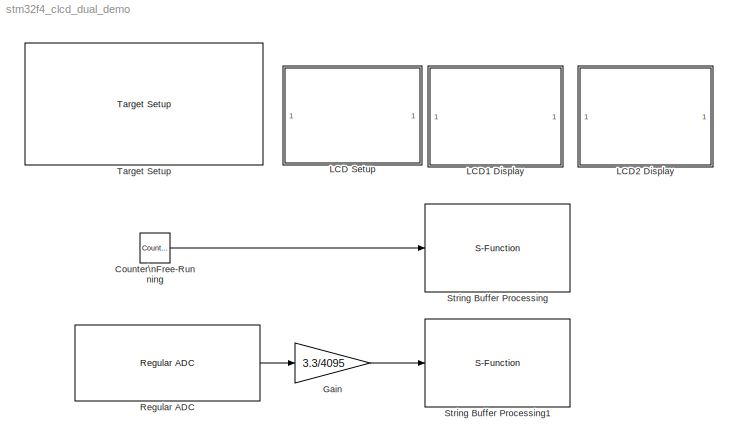
MODEL stm32f4_clcd_dual_demo
KIND model
CONFIG PreLoadFcn = waijung.modelPreload; % Required for working with Waijung Blockset. Do not remove.
BLOCK [Reference] Counter\nFree-Running  REF=simulink/Sources/Counter\nFree-Running
  FunctionWithSeparateData = off
  NumBits = 16
  Ports = [0, 1]
  RTWMemSecDataConstants = Inherit from model
  RTWMemSecDataInternal = Inherit from model
  RTWMemSecDataParameters = Inherit from model
  RTWMemSecFuncExecute = Inherit from model
  RTWMemSecFuncInitTerm = Inherit from model
  ShowPortLabels = FromPortIcon
  SourceBlock = simulink/Sources/Counter\nFree-Running
  SourceType = Counter Free-Running
  SystemSampleTime = -1
  tsamp = 0.01
BLOCK [Gain] Gain
  Gain = 3.3/4095
  OutDataType = fixdt(1, 16)
  OutDataTypeMode = single
  OutDataTypeStr = single
  OutScaling = 2^0
  ParamDataTypeStr = single
  ParameterDataType = fixdt(1, 16)
  ParameterDataTypeMode = single
  ParameterScaling = 2^0
  SaturateOnIntegerOverflow = off
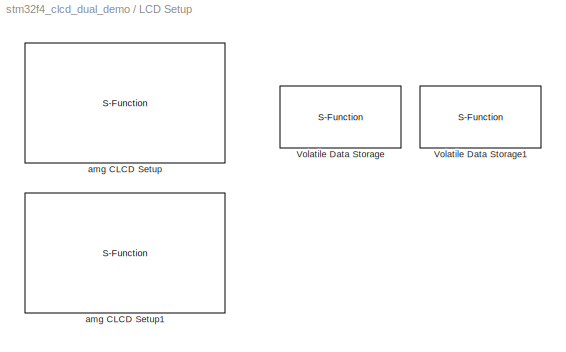
BLOCK [SubSystem] LCD Setup
  FunctionWithSeparateData = off
  MaskHideContents = off
  MinAlgLoopOccurrences = off
  Opaque = off
  Ports = []
  PropExecContextOutsideSubsystem = off
  RTWSystemCode = Auto
  RequestExecContextInheritance = off
BLOCK [S-Function] LCD Setup/Volatile Data Storage
  EnableBusSupport = off
  FunctionName = waijung_vdata_storage
  MaskCallbackString = waijung_vdata_storage_callback('storagetype');|waijung_vdata_storage_callback('storagename');|waijung_vdata_storage_callback('initval');|waijung_vdata_storage_callback('varname');||waijung_vdata_storage_callback('initvalstring');|waijung_vdata_storage_callback('webintegration');|waijung_vdata_storage_callback('weboutputformat');|||waijung_vdata_storage_callback('sampletime');|waijung_vdata_storage...<+71ch>  <repeated x4 — deduplicated; at blocks: Volatile Data Storage, Volatile Data Storage1>
  MaskDescription = This block implements a volatile Data Storage.\n\nWeb CGI varset/varget integratiopn:\nEnable - In webserver application, allow remote access via http.\nDisable - Variable is use in local only.  <repeated x4 — deduplicated; at blocks: Volatile Data Storage, Volatile Data Storage1>
  MaskDisplay = text(0.5, 0.5, 'Name: Line1\\nType: string','ver','middle','hor','center')
  MaskEnableString = on,on,on,off,on,on,on,on,off,on,on,off,off,on
  MaskHelp = web(fullfile(waijungdocroot,'Volatile_Data_Storage.htm'))
  MaskIconFrame = on
  MaskIconOpaque = on
  MaskIconRotate = none
  MaskIconUnits = normalized
  MaskInitialization = waijung_vdata_storage_callback('init');
  MaskPortRotate = default
  MaskPromptString = Storage Type|Storage Name (must be a valid variable name)|Initial value (Apply at Power on Reset only)|Variable name|Size (bytes)|Initial value (Apply at Power on Reset only)|Web CGI varget/varset integration|Web CGI varget output format|Web CGI varset callback|Last selected Storage Type|Sample time (sec)|Compiled sample time (sec) in string|BlockID|Type string  <repeated x4 — deduplicated; at blocks: Volatile Data Storage, Volatile Data Storage1>
  MaskSelfModifiable = on
  MaskStyleString = popup(double|single|uint32|int32|uint16|int16|uint8|int8|string),edit,edit,edit,edit,edit,popup(Disable|ReadOnly|Write/ Read|ReadOnly with KeyValuePair|Write/ Read with KeyValuePair),edit,edit,popup(double|single|uint32|int32|uint16|int16|uint8|int8|string),edit,edit,edit,edit  <repeated x4 — deduplicated; at blocks: Volatile Data Storage, Volatile Data Storage1>
  MaskTabNameString = ,,,,,,,,,,,,,
  MaskToolTipString = on,on,on,on,on,on,on,on,on,on,on,on,on,on
  MaskTunableValueString = off,off,off,off,off,off,off,off,off,off,off,off,off,off
  MaskType = waijung_vdata_storage
  MaskValueString = string|Line1|0|LCDSetupVolatileDataStorage_Line1|64|''|Disable|'%s'|(void*)0|string|-1|0.01|LCDSetupVolatileDataStorage|char
  MaskVarAliasString = ,,,,,,,,,,,,,
  MaskVariables = storagetype=&1;storagename=&2;initval=@3;varname=&4;buffersize=@5;initvalstring=@6;webintegration=&7;weboutputformat=&8;webcgicallback=&9;laststoragetype=&10;sampletime=@11;sampletimestr=&12;blockid=&13;storagetypestr=&14;  <repeated x4 — deduplicated; at blocks: Volatile Data Storage, Volatile Data Storage1>
  MaskVisibilityString = on,on,off,off,on,on,on,off,off,off,on,off,off,off
  Parameters = storagetype,storagename,initval,varname,buffersize,initvalstring,sampletime,sampletimestr,blockid,storagetypestr
  Ports = []
BLOCK [S-Function] LCD Setup/Volatile Data Storage1
  EnableBusSupport = off
  FunctionName = waijung_vdata_storage
  MaskDisplay = text(0.5, 0.5, 'Name: Line2\\nType: string','ver','middle','hor','center')
  MaskEnableString = on,on,on,off,on,on,on,on,off,on,on,off,off,on
  MaskHelp = web(fullfile(waijungdocroot,'Volatile_Data_Storage.htm'))
  MaskIconFrame = on
  MaskIconOpaque = on
  MaskIconRotate = none
  MaskIconUnits = normalized
  MaskInitialization = waijung_vdata_storage_callback('init');
  MaskPortRotate = default
  MaskSelfModifiable = on
  MaskTabNameString = ,,,,,,,,,,,,,
  MaskToolTipString = on,on,on,on,on,on,on,on,on,on,on,on,on,on
  MaskTunableValueString = off,off,off,off,off,off,off,off,off,off,off,off,off,off
  MaskType = waijung_vdata_storage
  MaskValueString = string|Line2|0|LCDSetupVolatileDataStorage1_Line2|64|''|Disable|'%s'|(void*)0|string|-1|0.01|LCDSetupVolatileDataStorage1|char
  MaskVarAliasString = ,,,,,,,,,,,,,
  MaskVisibilityString = on,on,off,off,on,on,on,off,off,off,on,off,off,off
  Parameters = storagetype,storagename,initval,varname,buffersize,initvalstring,sampletime,sampletimestr,blockid,storagetypestr
  Ports = []
BLOCK [S-Function] LCD Setup/amg CLCD Setup
  EnableBusSupport = off
  FunctionName = amg_clcd
  MaskCallbackString = amg_clcd_callback('configuration');||||||||||||||||amg_clcd_callback('usestringbuffer');||amg_clcd_callback('varname');|||amg_clcd_callback('confstr');|amg_clcd_callback('sampletime');|amg_clcd_callback('sampletimestr');|amg_clcd_callback('blockid');  <repeated x6 — deduplicated; at blocks: amg CLCD Setup, amg CLCD Setup1, amg CLCD Write, amg CLCD Write1>
  MaskDisplay = text(0.5, 0.5, 'Module: CLCD1 (Setup)\\nInterface: 4-bits\\nCntrl: E7/E8/E9\\nD[7:4]: E12/E13/E14/E15\\nTs (sec): 0.01','ver','middle','hor','center');
  MaskEnableString = on,on,on,off,off,on,on,on,on,on,on,on,on,on,on,on,on,on,off,off,off,on,on,on,on
  MaskHelp = web(fullfile(waijungdocroot,'amg_clcd.htm'), '-browser')
  MaskIconFrame = on
  MaskIconOpaque = on
  MaskIconRotate = none
  MaskIconUnits = normalized
  MaskInitialization = amg_clcd_callback('init');
  MaskPortRotate = default
  MaskPromptString = Configuration:|Module:|LCD model:|Interface:|Number of lines:|Number of columns:|GPIO Pull-Up/Down:|GPIO control port:|GPIO control pin, RS:|GPIO control pin, RW:|GPIO control pin, EN:|GPIO data D[7:4] port|GPIO data pin, D4:|GPIO data pin, D5:|GPIO data pin, D6:|GPIO data pin, D7:|Use string buffer|String buffer|Variable name|Input type array|Output type array|Configuration string|Sample time (se...<+47ch>
  MaskSelfModifiable = on
  MaskStyleString = popup(Setup|Transaction),popup(1|2|3|4),popup(amg CLCD Std),popup(4-bits),edit,edit,popup(Push-pull|Open-drain),popup(A|B|C|D|E|F|G|H|I),popup(0|1|2|3|4|5|6|7|8|9|10|11|12|13|14|15),popup(0|1|2|3|4|5|6|7|8|9|10|11|12|13|14|15),popup(0|1|2|3|4|5|6|7|8|9|10|11|12|13|14|15),popup(A|B|C|D|E|F|G|H|I),popup(0|1|2|3|4|5|6|7|8|9|10|11|12|13|14|15),popup(0|1|2|3|4|5|6|7|8|9|10|11|12|13|14|15),popup(0|1|2|3...<+152ch>  <repeated x6 — deduplicated; at blocks: amg CLCD Setup, amg CLCD Setup1, amg CLCD Write, amg CLCD Write1>
  MaskTabNameString = ,,,,,,,,,,,,,,,,,,,,,,,,
  MaskToolTipString = on,on,on,on,on,on,on,on,on,on,on,on,on,on,on,on,on,on,on,on,on,on,on,on,on
  MaskTunableValueString = off,off,off,off,off,off,off,off,off,off,off,off,off,off,off,off,off,off,off,off,off,off,off,off,off
  MaskType = amg_clcd
  MaskValueString = Setup|1|amg CLCD Std|4-bits|4|20|Push-pull|E|7|8|9|E|12|13|14|15|off|Line2|LCDSetupVolatileDataStorage_Line2|[0]|[0]|[\"4\",\"4\",\"20\",\"PP\",\"E\",\"7\",\"9\",\"8\",\"\",\"E\",\"\",\"\",\"\",\"\",\"12\",\"13\",\"14\",\"15\",\"0\",\"\",\"0\",\"0\",\"0\",\"0\",\"1\",\"0\",\"0\",\"0\",\"0\",\"stm32f4\"]|-1|0.01|LCDSetupamgCLCDSetup
  MaskVarAliasString = ,,,,,,,,,,,,,,,,,,,,,,,,
  MaskVariables = configuration=&1;module=&2;model=&3;interface=&4;linecount=@5;columncount=@6;gpiotype=&7;controlport=&8;control_rs=&9;control_rw=&10;control_en=&11;dataport=&12;data0=&13;data1=&14;data2=&15;data3=&16;usestringbuffer=@17;stringbuffer=&18;varname=&19;inputtypearray=@20;outputtypearray=@21;confstr=&22;sampletime=@23;sampletimestr=&24;blockid=&25;
  MaskVisibilityString = off,on,off,on,off,on,on,on,on,on,on,on,on,on,on,on,off,off,off,off,off,off,off,off,off
  Parameters = module,configuration,inputtypearray,outputtypearray,confstr,sampletime,sampletimestr,blockid
  Ports = []
BLOCK [S-Function] LCD Setup/amg CLCD Setup1
  EnableBusSupport = off
  FunctionName = amg_clcd
  MaskDisplay = text(0.5, 0.5, 'Module: CLCD2 (Setup)\\nInterface: 4-bits\\nCntrl: D8/D9/D10\\nD[7:4]: D11/D12/D13/D14\\nTs (sec): 0.01','ver','middle','hor','center');
  MaskEnableString = on,on,on,off,off,on,on,on,on,on,on,on,on,on,on,on,on,on,off,off,off,on,on,on,on
  MaskHelp = web(fullfile(waijungdocroot,'amg_clcd.htm'), '-browser')
  MaskIconFrame = on
  MaskIconOpaque = on
  MaskIconRotate = none
  MaskIconUnits = normalized
  MaskInitialization = amg_clcd_callback('init');
  MaskPortRotate = default
  MaskPromptString = Configuration:|Module:|LCD model:|Interface:|Number of lines:|Number of columns:|GPIO Pull-Up/Down:|GPIO control port:|GPIO control pin, RS:|GPIO control pin, RW:|GPIO control pin, EN:|GPIO data D[7:4] port|GPIO data pin, D4:|GPIO data pin, D5:|GPIO data pin, D6:|GPIO data pin, D7:|Use string buffer|String buffer|Variable name|Input type array|Output type array|Configuration string|Sample time (se...<+47ch>
  MaskSelfModifiable = on
  MaskTabNameString = ,,,,,,,,,,,,,,,,,,,,,,,,
  MaskToolTipString = on,on,on,on,on,on,on,on,on,on,on,on,on,on,on,on,on,on,on,on,on,on,on,on,on
  MaskTunableValueString = off,off,off,off,off,off,off,off,off,off,off,off,off,off,off,off,off,off,off,off,off,off,off,off,off
  MaskType = amg_clcd
  MaskValueString = Setup|2|amg CLCD Std|4-bits|4|16|Push-pull|D|8|9|10|D|11|12|13|14|off|Line2|LCDSetupVolatileDataStorage_Line2|[0]|[0]|[\"4\",\"4\",\"16\",\"PP\",\"D\",\"8\",\"10\",\"9\",\"\",\"D\",\"\",\"\",\"\",\"\",\"11\",\"12\",\"13\",\"14\",\"0\",\"\",\"0\",\"0\",\"0\",\"1\",\"0\",\"0\",\"0\",\"0\",\"0\",\"stm32f4\"]|-1|0.01|LCDSetupamgCLCDSetup1
  MaskVarAliasString = ,,,,,,,,,,,,,,,,,,,,,,,,
  MaskVariables = configuration=&1;module=&2;model=&3;interface=&4;linecount=@5;columncount=@6;gpiotype=&7;controlport=&8;control_rs=&9;control_rw=&10;control_en=&11;dataport=&12;data0=&13;data1=&14;data2=&15;data3=&16;usestringbuffer=@17;stringbuffer=&18;varname=&19;inputtypearray=@20;outputtypearray=@21;confstr=&22;sampletime=@23;sampletimestr=&24;blockid=&25;
  MaskVisibilityString = off,on,off,on,off,on,on,on,on,on,on,on,on,on,on,on,off,off,off,off,off,off,off,off,off
  Parameters = module,configuration,inputtypearray,outputtypearray,confstr,sampletime,sampletimestr,blockid
  Ports = []
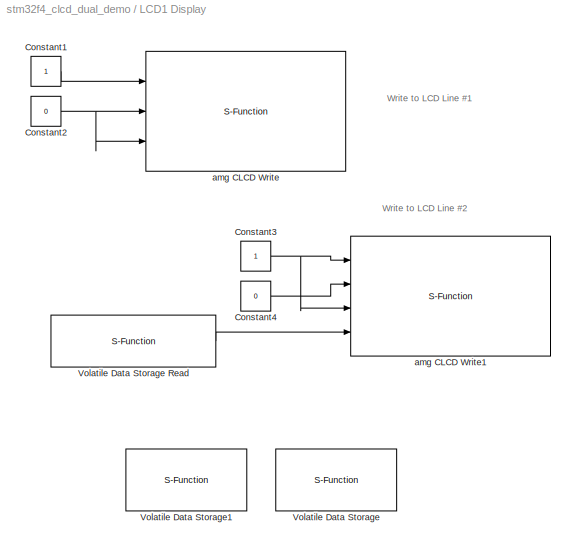
BLOCK [SubSystem] LCD1 Display
  FunctionWithSeparateData = off
  MaskHideContents = off
  MinAlgLoopOccurrences = off
  Opaque = off
  Ports = []
  PropExecContextOutsideSubsystem = off
  RTWSystemCode = Auto
  RequestExecContextInheritance = off
BLOCK [Constant] LCD1 Display/Constant1
  OutDataType = fixdt(1, 16)
  OutDataTypeMode = uint8
  OutDataTypeStr = uint8
  OutScaling = 2^0
BLOCK [Constant] LCD1 Display/Constant2
  OutDataType = fixdt(1, 16)
  OutDataTypeMode = uint8
  OutDataTypeStr = uint8
  OutScaling = 2^0
  Value = 0
BLOCK [Constant] LCD1 Display/Constant3
  OutDataType = fixdt(1, 16)
  OutDataTypeMode = uint8
  OutDataTypeStr = uint8
  OutScaling = 2^0
BLOCK [Constant] LCD1 Display/Constant4
  OutDataType = fixdt(1, 16)
  OutDataTypeMode = uint8
  OutDataTypeStr = uint8
  OutScaling = 2^0
  Value = 0
BLOCK [S-Function] LCD1 Display/Volatile Data Storage
  EnableBusSupport = off
  FunctionName = waijung_vdata_storage
  MaskDisplay = text(0.5, 0.5, 'Name: lcd_type\\nType: string','ver','middle','hor','center')
  MaskEnableString = on,on,on,off,on,on,on,on,off,on,on,off,off,on
  MaskHelp = web(fullfile(waijungdocroot,'Volatile_Data_Storage.htm'))
  MaskIconFrame = on
  MaskIconOpaque = on
  MaskIconRotate = none
  MaskIconUnits = normalized
  MaskInitialization = waijung_vdata_storage_callback('init');
  MaskPortRotate = default
  MaskSelfModifiable = on
  MaskTabNameString = ,,,,,,,,,,,,,
  MaskToolTipString = on,on,on,on,on,on,on,on,on,on,on,on,on,on
  MaskTunableValueString = off,off,off,off,off,off,off,off,off,off,off,off,off,off
  MaskType = waijung_vdata_storage
  MaskValueString = string|lcd_type|0|LCD1DisplayVolatileDataStorage_lcd_type|64|'16x4 LCD'|Disable|'%s'|(void*)0|string|-1|0.01|LCD1DisplayVolatileDataStorage|char
  MaskVarAliasString = ,,,,,,,,,,,,,
  MaskVisibilityString = on,on,off,off,on,on,on,off,off,off,on,off,off,off
  Parameters = storagetype,storagename,initval,varname,buffersize,initvalstring,sampletime,sampletimestr,blockid,storagetypestr
  Ports = []
BLOCK [S-Function] LCD1 Display/Volatile Data Storage Read
  EnableBusSupport = off
  FunctionName = waijung_vdata_read
  MaskCallbackString = waijung_vdata_read_callback('storagename');|waijung_vdata_read_callback('varname');|waijung_vdata_read_callback('sampletime');|waijung_vdata_read_callback('sampletimestr');|waijung_vdata_read_callback('blockid');|waijung_vdata_read_callback('storagetype');|
  MaskDescription = This block implements read data from a buffer.
  MaskDisplay = text(0.05, 0.5, 'Buffer: lcd_type','ver','middle','hor','left');port_label('output',1,'D1(string)')
  MaskEnableString = on,off,on,off,off,on,on
  MaskHelp = web(fullfile(waijungdocroot,'waijung_vdata_read.htm'))
  MaskIconFrame = on
  MaskIconOpaque = on
  MaskIconRotate = none
  MaskIconUnits = normalized
  MaskInitialization = waijung_vdata_read_callback('init');
  MaskPortRotate = default
  MaskPromptString = Storage Name|Variable name|Sample time (sec)|Compiled sample time (sec) in string|BlockID|Data type|Data type string
  MaskSelfModifiable = on
  MaskStyleString = popup(Line1|Line2|lcd_type|amg),edit,edit,edit,edit,edit,edit
  MaskTabNameString = ,,,,,,
  MaskToolTipString = on,on,on,on,on,on,on
  MaskTunableValueString = off,off,off,off,off,off,off
  MaskType = waijung_vdata_read
  MaskValueString = lcd_type|LCD1DisplayVolatileDataStorage_lcd_type|inf|0.01|LCD1DisplayVolatileDataStorageRead|string|uint32_t
  MaskVarAliasString = ,,,,,,
  MaskVariables = storagename=&1;varname=&2;sampletime=@3;sampletimestr=&4;blockid=&5;storagetype=&6;storagetypestr=&7;
  MaskVisibilityString = on,off,on,off,off,off,off
  Parameters = storagename,varname,sampletime,sampletimestr,blockid,storagetype,storagetypestr
  Ports = [0, 1]
BLOCK [S-Function] LCD1 Display/Volatile Data Storage1
  EnableBusSupport = off
  FunctionName = waijung_vdata_storage
  MaskDisplay = text(0.5, 0.5, 'Name: amg\\nType: string','ver','middle','hor','center')
  MaskEnableString = on,on,on,off,on,on,on,on,off,on,on,off,off,on
  MaskHelp = web(fullfile(waijungdocroot,'Volatile_Data_Storage.htm'))
  MaskIconFrame = on
  MaskIconOpaque = on
  MaskIconRotate = none
  MaskIconUnits = normalized
  MaskInitialization = waijung_vdata_storage_callback('init');
  MaskPortRotate = default
  MaskSelfModifiable = on
  MaskTabNameString = ,,,,,,,,,,,,,
  MaskToolTipString = on,on,on,on,on,on,on,on,on,on,on,on,on,on
  MaskTunableValueString = off,off,off,off,off,off,off,off,off,off,off,off,off,off
  MaskType = waijung_vdata_storage
  MaskValueString = string|amg|0|LCD1DisplayVolatileDataStorage1_amg|64|'www.aimagin.com'|Disable|'%s'|(void*)0|string|-1|0.01|LCD1DisplayVolatileDataStorage1|char
  MaskVarAliasString = ,,,,,,,,,,,,,
  MaskVisibilityString = on,on,off,off,on,on,on,off,off,off,on,off,off,off
  Parameters = storagetype,storagename,initval,varname,buffersize,initvalstring,sampletime,sampletimestr,blockid,storagetypestr
  Ports = []
BLOCK [S-Function] LCD1 Display/amg CLCD Write
  EnableBusSupport = off
  FunctionName = amg_clcd
  MaskDescription = Note for cmd:\n1 - Clear LCD Line before write.\n0 or otherwise - Write into LCD Line with existing data.\n
  MaskDisplay = text(0.5, 0.5, 'Module: CLCD1 (Write)\\nBuffer: amg\\nTs (sec): 0.01','ver','middle','hor','center');port_label('input', 1,'cmd');port_label('input', 2,'xpos');port_label('input', 3,'ypos');
  MaskEnableString = on,on,on,off,off,on,on,on,on,on,on,on,on,on,on,on,on,on,off,off,off,on,on,on,on
  MaskHelp = web(fullfile(waijungdocroot,'amg_clcd.htm'), '-browser')
  MaskIconFrame = on
  MaskIconOpaque = on
  MaskIconRotate = none
  MaskIconUnits = normalized
  MaskInitialization = amg_clcd_callback('init');
  MaskPortRotate = default
  MaskPromptString = Configuration:|Module:|LCD model:|Interface:|Number of lines:|Number of columns:|GPIO Pull-Up/Down:|GPIO control port:|GPIO control pin, RS:|GPIO control pin, EN:|GPIO control pin, RW:|GPIO data D[7:4] port|GPIO data pin, D4:|GPIO data pin, D5:|GPIO data pin, D6:|GPIO data pin, D7:|Use string buffer|String buffer|Variable name|Input type array|Output type array|Configuration string|Sample time (se...<+47ch>  <repeated x4 — deduplicated; at blocks: amg CLCD Write, amg CLCD Write1>
  MaskSelfModifiable = on
  MaskTabNameString = ,,,,,,,,,,,,,,,,,,,,,,,,
  MaskToolTipString = on,on,on,on,on,on,on,on,on,on,on,on,on,on,on,on,on,on,on,on,on,on,on,on,on
  MaskTunableValueString = off,off,off,off,off,off,off,off,off,off,off,off,off,off,off,off,off,off,off,off,off,off,off,off,off
  MaskType = amg_clcd
  MaskValueString = Transaction|1|amg CLCD Std|4-bits|4|20|Push-pull|E|15|11|13|A|7|5|3|1|on|amg|LCD1DisplayVolatileDataStorage1_amg|[3 -1 -1 -1]|[0]|[\"4\",\"4\",\"20\",\"PP\",\"E\",\"15\",\"11\",\"13\",\"\",\"A\",\"\",\"\",\"\",\"\",\"7\",\"5\",\"3\",\"1\",\"1\",\"LCD1DisplayVolatileDataStorage1_amg\",\"1\",\"0\",\"0\",\"0\",\"1\",\"0\",\"0\",\"0\",\"0\",\"stm32f4\"]|0.01|0.01|LCD1DisplayamgCLCDWrite
  MaskVarAliasString = ,,,,,,,,,,,,,,,,,,,,,,,,
  MaskVariables = configuration=&1;module=&2;model=&3;interface=&4;linecount=@5;columncount=@6;gpiotype=&7;controlport=&8;control_rs=&9;control_en=&10;control_rw=&11;dataport=&12;data0=&13;data1=&14;data2=&15;data3=&16;usestringbuffer=@17;stringbuffer=&18;varname=&19;inputtypearray=@20;outputtypearray=@21;confstr=&22;sampletime=@23;sampletimestr=&24;blockid=&25;  <repeated x4 — deduplicated; at blocks: amg CLCD Write, amg CLCD Write1>
  MaskVisibilityString = off,on,off,off,off,off,off,off,off,off,off,off,off,off,off,off,on,on,off,off,off,off,on,off,off
  Parameters = module,configuration,inputtypearray,outputtypearray,confstr,sampletime,sampletimestr,blockid
  Ports = [3]
BLOCK [S-Function] LCD1 Display/amg CLCD Write1
  EnableBusSupport = off
  FunctionName = amg_clcd
  MaskDescription = Note for cmd:\n1 - Clear LCD Line before write.\n0 or otherwise - Write into LCD Line with existing data.\n
  MaskDisplay = text(0.5, 0.5, 'Module: CLCD1 (Write)\\nTs (sec): 0.01','ver','middle','hor','center');port_label('input', 1,'cmd');port_label('input', 2,'xpos');port_label('input', 3,'ypos');port_label('input', 4,'str');
  MaskEnableString = on,on,on,off,off,on,on,on,on,on,on,on,on,on,on,on,on,on,off,off,off,on,on,on,on
  MaskHelp = web(fullfile(waijungdocroot,'amg_clcd.htm'), '-browser')
  MaskIconFrame = on
  MaskIconOpaque = on
  MaskIconRotate = none
  MaskIconUnits = normalized
  MaskInitialization = amg_clcd_callback('init');
  MaskPortRotate = default
  MaskSelfModifiable = on
  MaskTabNameString = ,,,,,,,,,,,,,,,,,,,,,,,,
  MaskToolTipString = on,on,on,on,on,on,on,on,on,on,on,on,on,on,on,on,on,on,on,on,on,on,on,on,on
  MaskTunableValueString = off,off,off,off,off,off,off,off,off,off,off,off,off,off,off,off,off,off,off,off,off,off,off,off,off
  MaskType = amg_clcd
  MaskValueString = Transaction|1|amg CLCD Std|4-bits|4|20|Push-pull|E|15|11|13|A|7|5|3|1|off|Line2|LCDSetupVolatileDataStorage1_Line2|[4 -1 -1 -1 -1]|[0]|[\"4\",\"4\",\"20\",\"PP\",\"E\",\"15\",\"11\",\"13\",\"\",\"A\",\"\",\"\",\"\",\"\",\"7\",\"5\",\"3\",\"1\",\"0\",\"\",\"1\",\"0\",\"0\",\"0\",\"1\",\"0\",\"0\",\"0\",\"0\",\"stm32f4\"]|0.01|0.01|LCD1DisplayamgCLCDWrite1
  MaskVarAliasString = ,,,,,,,,,,,,,,,,,,,,,,,,
  MaskVisibilityString = off,on,off,off,off,off,off,off,off,off,off,off,off,off,off,off,on,off,off,off,off,off,on,off,off
  Parameters = module,configuration,inputtypearray,outputtypearray,confstr,sampletime,sampletimestr,blockid
  Ports = [4]
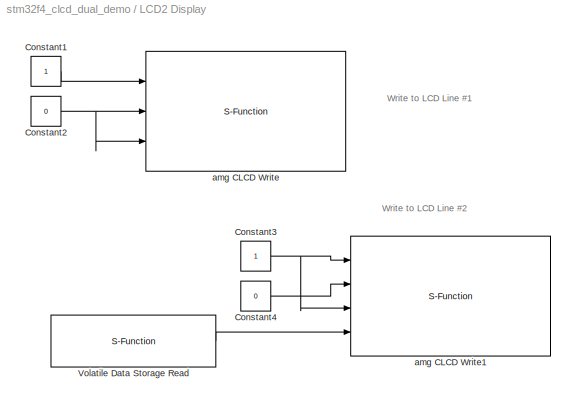
BLOCK [SubSystem] LCD2 Display
  FunctionWithSeparateData = off
  MaskHideContents = off
  MinAlgLoopOccurrences = off
  Opaque = off
  Ports = []
  PropExecContextOutsideSubsystem = off
  RTWSystemCode = Auto
  RequestExecContextInheritance = off
BLOCK [Constant] LCD2 Display/Constant1
  OutDataType = fixdt(1, 16)
  OutDataTypeMode = uint8
  OutDataTypeStr = uint8
  OutScaling = 2^0
BLOCK [Constant] LCD2 Display/Constant2
  OutDataType = fixdt(1, 16)
  OutDataTypeMode = uint8
  OutDataTypeStr = uint8
  OutScaling = 2^0
  Value = 0
BLOCK [Constant] LCD2 Display/Constant3
  OutDataType = fixdt(1, 16)
  OutDataTypeMode = uint8
  OutDataTypeStr = uint8
  OutScaling = 2^0
BLOCK [Constant] LCD2 Display/Constant4
  OutDataType = fixdt(1, 16)
  OutDataTypeMode = uint8
  OutDataTypeStr = uint8
  OutScaling = 2^0
  Value = 0
BLOCK [S-Function] LCD2 Display/Volatile Data Storage Read
  EnableBusSupport = off
  FunctionName = waijung_vdata_read
  MaskCallbackString = waijung_vdata_read_callback('storagename');|waijung_vdata_read_callback('varname');|waijung_vdata_read_callback('sampletime');|waijung_vdata_read_callback('sampletimestr');|waijung_vdata_read_callback('blockid');|waijung_vdata_read_callback('storagetype');|
  MaskDescription = This block implements read data from a buffer.
  MaskDisplay = text(0.05, 0.5, 'Buffer: Line1','ver','middle','hor','left');port_label('output',1,'D1(string)')
  MaskEnableString = on,off,on,off,off,on,on
  MaskHelp = web(fullfile(waijungdocroot,'waijung_vdata_read.htm'))
  MaskIconFrame = on
  MaskIconOpaque = on
  MaskIconRotate = none
  MaskIconUnits = normalized
  MaskInitialization = waijung_vdata_read_callback('init');
  MaskPortRotate = default
  MaskPromptString = Storage Name|Variable name|Sample time (sec)|Compiled sample time (sec) in string|BlockID|Data type|Data type string
  MaskSelfModifiable = on
  MaskStyleString = popup(Line1|Line2|lcd_type|amg),edit,edit,edit,edit,edit,edit
  MaskTabNameString = ,,,,,,
  MaskToolTipString = on,on,on,on,on,on,on
  MaskTunableValueString = off,off,off,off,off,off,off
  MaskType = waijung_vdata_read
  MaskValueString = Line1|LCDSetupVolatileDataStorage_Line1|inf|0.01|LCD2DisplayVolatileDataStorageRead|string|uint32_t
  MaskVarAliasString = ,,,,,,
  MaskVariables = storagename=&1;varname=&2;sampletime=@3;sampletimestr=&4;blockid=&5;storagetype=&6;storagetypestr=&7;
  MaskVisibilityString = on,off,on,off,off,off,off
  Parameters = storagename,varname,sampletime,sampletimestr,blockid,storagetype,storagetypestr
  Ports = [0, 1]
BLOCK [S-Function] LCD2 Display/amg CLCD Write
  EnableBusSupport = off
  FunctionName = amg_clcd
  MaskDescription = Note for cmd:\n1 - Clear LCD Line before write.\n0 or otherwise - Write into LCD Line with existing data.\n
  MaskDisplay = text(0.5, 0.5, 'Module: CLCD2 (Write)\\nBuffer: Line2\\nTs (sec): 0.01','ver','middle','hor','center');port_label('input', 1,'cmd');port_label('input', 2,'xpos');port_label('input', 3,'ypos');
  MaskEnableString = on,on,on,off,off,on,on,on,on,on,on,on,on,on,on,on,on,on,off,off,off,on,on,on,on
  MaskHelp = web(fullfile(waijungdocroot,'amg_clcd.htm'), '-browser')
  MaskIconFrame = on
  MaskIconOpaque = on
  MaskIconRotate = none
  MaskIconUnits = normalized
  MaskInitialization = amg_clcd_callback('init');
  MaskPortRotate = default
  MaskSelfModifiable = on
  MaskTabNameString = ,,,,,,,,,,,,,,,,,,,,,,,,
  MaskToolTipString = on,on,on,on,on,on,on,on,on,on,on,on,on,on,on,on,on,on,on,on,on,on,on,on,on
  MaskTunableValueString = off,off,off,off,off,off,off,off,off,off,off,off,off,off,off,off,off,off,off,off,off,off,off,off,off
  MaskType = amg_clcd
  MaskValueString = Transaction|2|amg CLCD Std|4-bits|4|20|Push-pull|E|15|11|13|A|7|5|3|1|on|Line2|LCDSetupVolatileDataStorage1_Line2|[3 -1 -1 -1]|[0]|[\"4\",\"4\",\"20\",\"PP\",\"E\",\"15\",\"11\",\"13\",\"\",\"A\",\"\",\"\",\"\",\"\",\"7\",\"5\",\"3\",\"1\",\"1\",\"LCDSetupVolatileDataStorage1_Line2\",\"1\",\"0\",\"0\",\"0\",\"1\",\"0\",\"0\",\"0\",\"0\",\"stm32f4\"]|0.01|0.01|LCD2DisplayamgCLCDWrite
  MaskVarAliasString = ,,,,,,,,,,,,,,,,,,,,,,,,
  MaskVisibilityString = off,on,off,off,off,off,off,off,off,off,off,off,off,off,off,off,on,on,off,off,off,off,on,off,off
  Parameters = module,configuration,inputtypearray,outputtypearray,confstr,sampletime,sampletimestr,blockid
  Ports = [3]
BLOCK [S-Function] LCD2 Display/amg CLCD Write1
  EnableBusSupport = off
  FunctionName = amg_clcd
  MaskDescription = Note for cmd:\n1 - Clear LCD Line before write.\n0 or otherwise - Write into LCD Line with existing data.\n
  MaskDisplay = text(0.5, 0.5, 'Module: CLCD2 (Write)\\nTs (sec): 0.01','ver','middle','hor','center');port_label('input', 1,'cmd');port_label('input', 2,'xpos');port_label('input', 3,'ypos');port_label('input', 4,'str');
  MaskEnableString = on,on,on,off,off,on,on,on,on,on,on,on,on,on,on,on,on,on,off,off,off,on,on,on,on
  MaskHelp = web(fullfile(waijungdocroot,'amg_clcd.htm'), '-browser')
  MaskIconFrame = on
  MaskIconOpaque = on
  MaskIconRotate = none
  MaskIconUnits = normalized
  MaskInitialization = amg_clcd_callback('init');
  MaskPortRotate = default
  MaskSelfModifiable = on
  MaskTabNameString = ,,,,,,,,,,,,,,,,,,,,,,,,
  MaskToolTipString = on,on,on,on,on,on,on,on,on,on,on,on,on,on,on,on,on,on,on,on,on,on,on,on,on
  MaskTunableValueString = off,off,off,off,off,off,off,off,off,off,off,off,off,off,off,off,off,off,off,off,off,off,off,off,off
  MaskType = amg_clcd
  MaskValueString = Transaction|2|amg CLCD Std|4-bits|4|20|Push-pull|E|15|11|13|A|7|5|3|1|off|Line2|LCDSetupVolatileDataStorage1_Line2|[4 -1 -1 -1 -1]|[0]|[\"4\",\"4\",\"20\",\"PP\",\"E\",\"15\",\"11\",\"13\",\"\",\"A\",\"\",\"\",\"\",\"\",\"7\",\"5\",\"3\",\"1\",\"0\",\"\",\"1\",\"0\",\"0\",\"0\",\"1\",\"0\",\"0\",\"0\",\"0\",\"stm32f4\"]|0.01|0.01|LCD2DisplayamgCLCDWrite1
  MaskVarAliasString = ,,,,,,,,,,,,,,,,,,,,,,,,
  MaskVisibilityString = off,on,off,off,off,off,off,off,off,off,off,off,off,off,off,off,on,off,off,off,off,off,on,off,off
  Parameters = module,configuration,inputtypearray,outputtypearray,confstr,sampletime,sampletimestr,blockid
  Ports = [4]
BLOCK [Reference] Regular ADC  REF=stm32f4_adc_lib/Regular ADC
  Ports = [0, 1]
  SourceBlock = stm32f4_adc_lib/Regular ADC
  SourceType = stm32f4_regular_adc
  adcmodule = 1
  blockid = RegularADC
  chsamplingtime = Auto
  chsamplingtimestr = ADC_SampleTime_480Cycles
  cinputportlabel = 0
  coutputportlabel = Out1, Out2
  enablecustomportlabel = off
  outputdatatype = Single
  pinstr = GPIO_Pin_0
  prescaler = 2
  prescalerstr = ADC_Prescaler_Div2
  read_an0 = on
  read_an1 = off
  read_an10 = off
  read_an11 = off
  read_an12 = off
  read_an13 = off
  read_an14 = off
  read_an15 = off
  read_an16 = off
  read_an17 = off
  read_an18 = off
  read_an2 = off
  read_an3 = off
  read_an4 = off
  read_an5 = off
  read_an6 = off
  read_an7 = off
  read_an8 = off
  read_an9 = off
  sampletime = 0.01
  usedpinarray = [1  0  0  0  0  0  0  0  0  0  0  0  0  0  0  0  0  0  0]
  usedpinidarray = [0]
  usedpinidcount = 1
  usedportidarray = [0]
BLOCK [S-Function] String Buffer Processing
  EnableBusSupport = off
  FunctionName = waijung_stringbuffer_processing
  MaskCallbackString = waijung_stringbuffer_processing_callback('configuration');||waijung_stringbuffer_processing_callback('sformat');|waijung_stringbuffer_processing_callback('enableoutput');||||||waijung_stringbuffer_processing_callback('sampletime');|waijung_stringbuffer_processing_callback('sampletimestr');|waijung_stringbuffer_processing_callback('blockid');
  MaskDescription = This block implements string processing, sprintf/ sscanf command.\nSupported format:\n%u, %i, %o, %x: uint32\n%d: int32\n%e, %g, %f: single\n%c: int8\n\nStatus:\n 0: Failed.\n Non-zero: Success.
  MaskDisplay = text(0.5, 0.5, '[ sprintf ]\\nBuffer: Line1\\nTs (sec): 0.01','ver','middle','hor','center');port_label('input', 1,'%u');
  MaskEnableString = on,on,on,on,off,on,on,on,on,on,off,off
  MaskHelp = web(fullfile(waijungdocroot,'String_Buffer_Processing.htm'))
  MaskIconFrame = on
  MaskIconOpaque = on
  MaskIconRotate = none
  MaskIconUnits = normalized
  MaskInitialization = waijung_stringbuffer_processing_callback('init');
  MaskPortRotate = default
  MaskPromptString = Function|String buffer|Printf format|Enable output status|Variable name|Input type array|Output type array|Port type list|Port type count|Sample time (sec)|Compiled sample time (sec) in string|BlockID
  MaskSelfModifiable = on
  MaskStyleString = popup(sprintf|sscanf),popup(Line1|Line2|lcd_type|amg|<output>),edit,checkbox,edit,edit,edit,edit,edit,edit,edit,edit
  MaskTabNameString = ,,,,,,,,,,,
  MaskToolTipString = on,on,on,on,on,on,on,on,on,on,on,on
  MaskTunableValueString = on,off,off,off,off,off,off,off,off,off,off,off
  MaskType = waijung_stringbuffer_processing
  MaskValueString = sprintf|Line1|'Index: %u'|off|LCDSetupVolatileDataStorage_Line1|[1 -1]|[0]|[\"uint32_t\"]|1|-1|0.01|StringBufferProcessing
  MaskVarAliasString = ,,,,,,,,,,,
  MaskVariables = configuration=&1;storagename=&2;sformat=@3;enableoutput=&4;varname=&5;inputtypearray=@6;outputtypearray=@7;porttypes=&8;portcount=@9;sampletime=@10;sampletimestr=&11;blockid=&12;
  MaskVisibilityString = on,on,on,on,off,off,off,off,off,on,off,off
  Parameters = configuration,varname,sformat,porttypes,portcount,inputtypearray,outputtypearray,sampletime,sampletimestr,blockid
  Ports = [1]
BLOCK [S-Function] String Buffer Processing1
  EnableBusSupport = off
  FunctionName = waijung_stringbuffer_processing
  MaskCallbackString = waijung_stringbuffer_processing_callback('configuration');||waijung_stringbuffer_processing_callback('sformat');|waijung_stringbuffer_processing_callback('enableoutput');||||||waijung_stringbuffer_processing_callback('sampletime');|waijung_stringbuffer_processing_callback('sampletimestr');|waijung_stringbuffer_processing_callback('blockid');
  MaskDescription = This block implements string processing, sprintf/ sscanf command.\nSupported format:\n%u, %i, %o, %x: uint32\n%d: int32\n%e, %g, %f: single\n%c: int8\n\nStatus:\n 0: Failed.\n Non-zero: Success.
  MaskDisplay = text(0.5, 0.5, '[ sprintf ]\\nBuffer: Line2\\nTs (sec): 0.01','ver','middle','hor','center');port_label('input', 1,'%f');
  MaskEnableString = on,on,on,on,off,on,on,on,on,on,off,off
  MaskHelp = web(fullfile(waijungdocroot,'String_Buffer_Processing.htm'))
  MaskIconFrame = on
  MaskIconOpaque = on
  MaskIconRotate = none
  MaskIconUnits = normalized
  MaskInitialization = waijung_stringbuffer_processing_callback('init');
  MaskPortRotate = default
  MaskPromptString = Function|String buffer|Printf format|Enable output status|Variable name|Input type array|Output type array|Port type list|Port type count|Sample time (sec)|Compiled sample time (sec) in string|BlockID
  MaskSelfModifiable = on
  MaskStyleString = popup(sprintf|sscanf),popup(Line1|Line2|lcd_type|amg|<output>),edit,checkbox,edit,edit,edit,edit,edit,edit,edit,edit
  MaskTabNameString = ,,,,,,,,,,,
  MaskToolTipString = on,on,on,on,on,on,on,on,on,on,on,on
  MaskTunableValueString = on,off,off,off,off,off,off,off,off,off,off,off
  MaskType = waijung_stringbuffer_processing
  MaskValueString = sprintf|Line2|'Value: %1.3f V'|off|LCDSetupVolatileDataStorage1_Line2|[1 -1]|[0]|[\"float\"]|1|-1|0.01|StringBufferProcessing1
  MaskVarAliasString = ,,,,,,,,,,,
  MaskVariables = configuration=&1;storagename=&2;sformat=@3;enableoutput=&4;varname=&5;inputtypearray=@6;outputtypearray=@7;porttypes=&8;portcount=@9;sampletime=@10;sampletimestr=&11;blockid=&12;
  MaskVisibilityString = on,on,on,on,off,off,off,off,off,on,off,off
  Parameters = configuration,varname,sformat,porttypes,portcount,inputtypearray,outputtypearray,sampletime,sampletimestr,blockid
  Ports = [1]
BLOCK [Reference] Target Setup  REF=stm32f4_device_config_lib/Target Setup
  Ports = []
  Priority = 100
  SourceBlock = stm32f4_device_config_lib/Target Setup
  SourceType = stm32f4_target_setup
  assemblercontrolstr = $(patsubst %, -I%, .) -mcpu=cortex-m4 -mthumb -mthumb-interwork -mfloat-abi=hard -mfpu=fpv4-sp-d16 -ffast-math -Wall -Wextra -Ofast -Wa,-amhls=$(<:.s=.lst) -D__STACK_SIZE=$(STACK_SIZE) -D__HEAP_SIZE=$(HEAP_SIZE)
  blockid = TargetSetup
  clockconfig = HSEOSC-8MHz
  compiler = GNU ARM
  compilercontrolstr = $(patsubst %, -I%, .) -mcpu=cortex-m4 -mthumb -mthumb-interwork -mfloat-abi=hard -mfpu=fpv4-sp-d16 -ffast-math -Wall -Wextra -Ofast
  editctrlstr = on
  enableautocompiledownload = on
  execprofile = None
  flashlength = 1024k
  flashorigin = 0x8000000
  fullchiperase = off
  hclk = 168000000
  heapsize = 0x200
  hseval = 8000000
  lastprofileruart = 1
  linkercontrolstr = -T$(LD_SCRIPT) -g -Wl,-Map=$(MAP),--cref,--no-warn-mismatch -mcpu=cortex-m4 -mthumb -mthumb-interwork -mfloat-abi=hard -mfpu=fpv4-sp-d16 -specs=nosys.specs
  manualsetsampletime = off
  mcu = STM32F417IG (LQFP176)
  mcustr = STM32F417IG
  previous_compiler = GNU ARM
  profilerbaud = 115200
  profilerinitstr = 0.01,168000000,1680000,115200,0
  profilertxpin = D8
  profileruart = 1
  programmerinterface = ST-Link
  ramlength = 128k
  ramorigin = 0x20000000
  runafterdownload = on
  sampletime = 0.01
  showmemoryconfiguration = off
  stacksize = 0x400
  system_stm32f4xx_c_path = <path>
  systickreloadvalue = 1680000
  useextram = off
ANNOTATION LCD1 Display: Write to LCD Line #1
ANNOTATION LCD1 Display: Write to LCD Line #2
ANNOTATION LCD2 Display: Write to LCD Line #1
ANNOTATION LCD2 Display: Write to LCD Line #2
LINE Counter\nFree-Running:1 -> String Buffer Processing:1
LINE Gain:1 -> String Buffer Processing1:1
LINE LCD1 Display/Constant1:1 -> LCD1 Display/amg CLCD Write:1
NET LCD1 Display/Constant2:1 -> LCD1 Display/amg CLCD Write:2, LCD1 Display/amg CLCD Write:3
NET LCD1 Display/Constant3:1 -> LCD1 Display/amg CLCD Write1:1, LCD1 Display/amg CLCD Write1:3
LINE LCD1 Display/Constant4:1 -> LCD1 Display/amg CLCD Write1:2
LINE LCD1 Display/Volatile Data Storage Read:1 -> LCD1 Display/amg CLCD Write1:4
LINE LCD2 Display/Constant1:1 -> LCD2 Display/amg CLCD Write:1
NET LCD2 Display/Constant2:1 -> LCD2 Display/amg CLCD Write:2, LCD2 Display/amg CLCD Write:3
NET LCD2 Display/Constant3:1 -> LCD2 Display/amg CLCD Write1:1, LCD2 Display/amg CLCD Write1:3
LINE LCD2 Display/Constant4:1 -> LCD2 Display/amg CLCD Write1:2
LINE LCD2 Display/Volatile Data Storage Read:1 -> LCD2 Display/amg CLCD Write1:4
LINE Regular ADC:1 -> Gain:1
note: NET lines group one-source signal fan-out (src -> all destinations, sorted); 1:1 wires keep LINE
note: 1 file-system path scrubbed to <path> (not preserved elsewhere — flat text is the only slx artifact)
